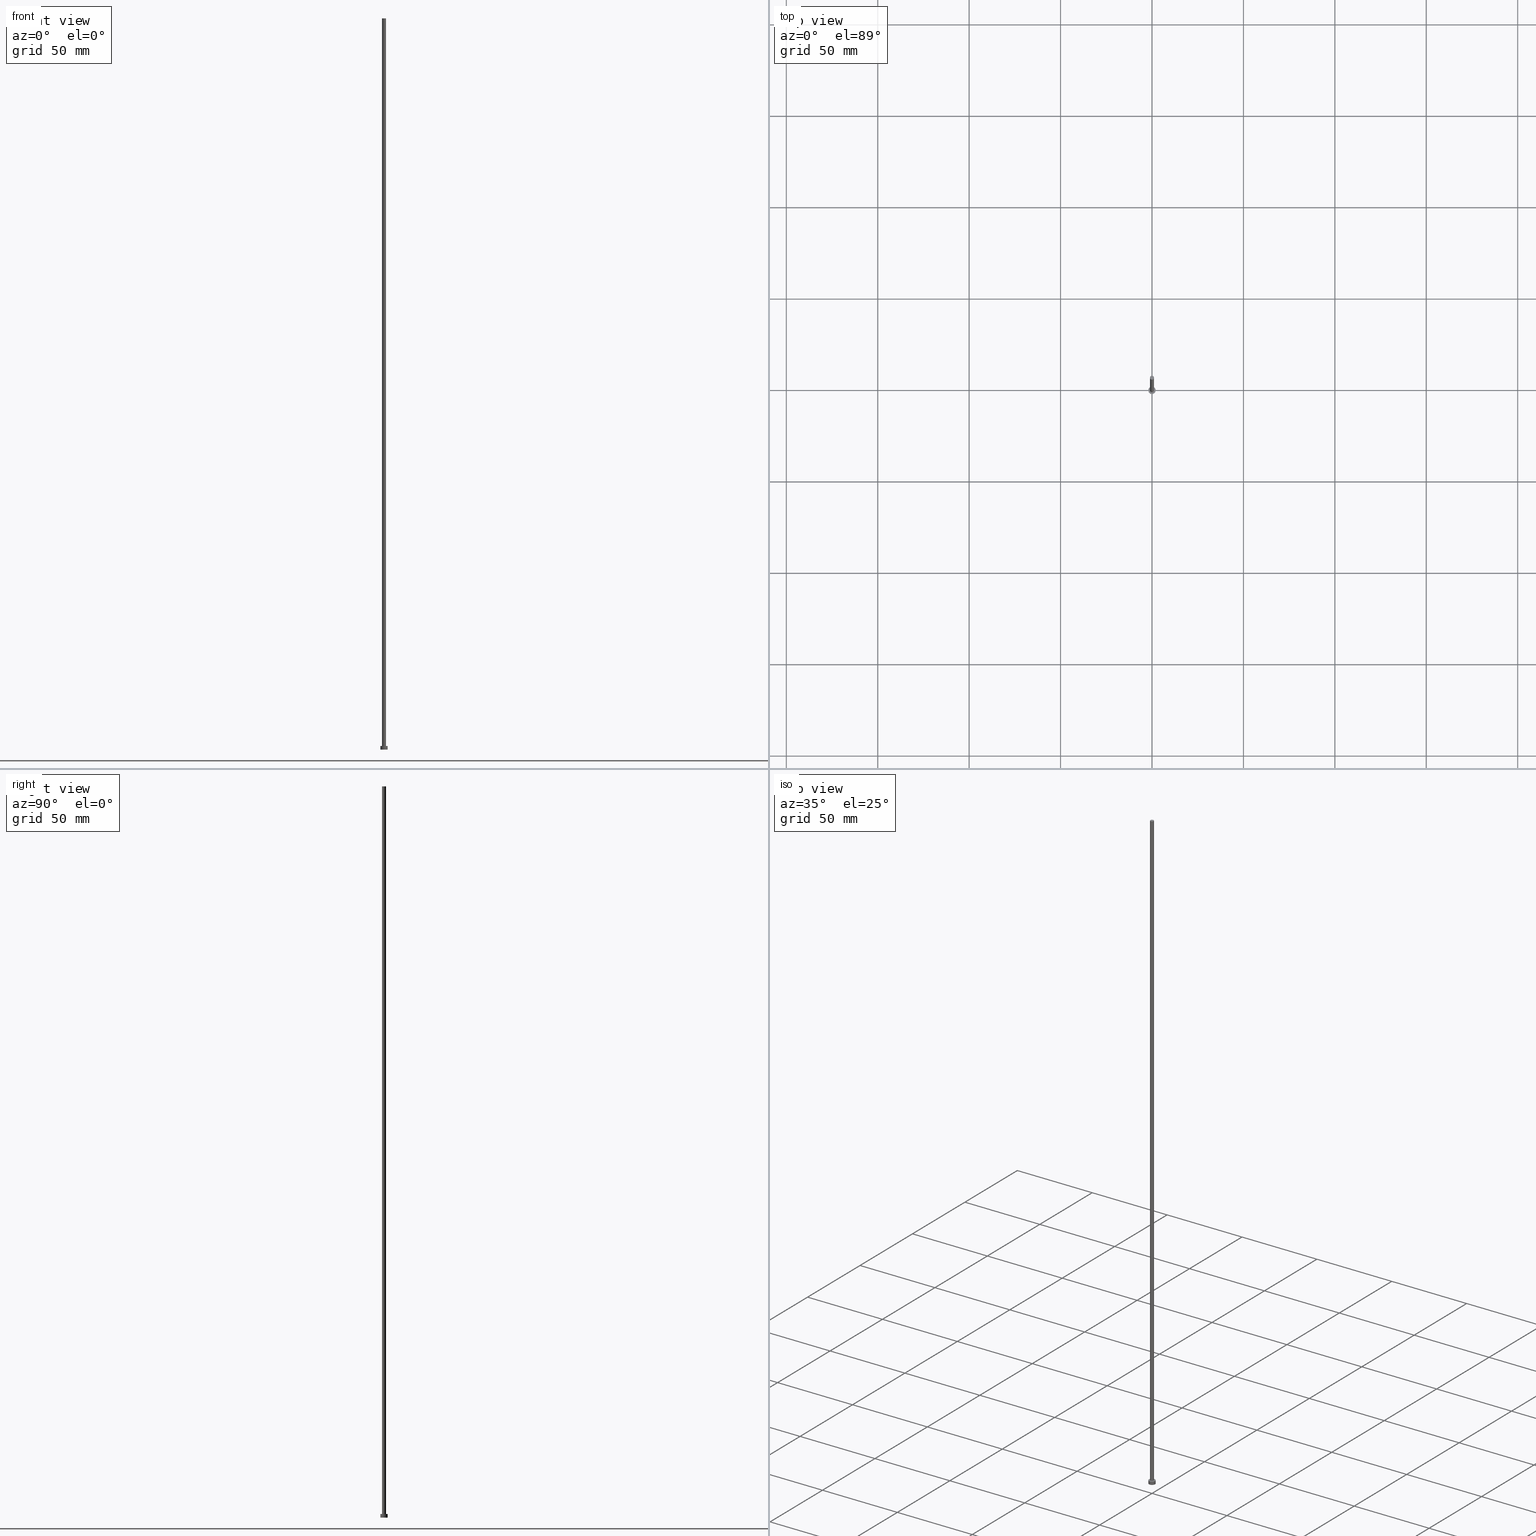
[diagram: canonical four-view strip — front | top / right | iso, engineering-drawing reading convention]
A machine part, canonical four-view strip (front | top / right | iso — engineering-drawing reading convention). The complete STEP part file that produces these views, byte-faithful:
ISO-10303-21;
HEADER;
FILE_DESCRIPTION (( 'STEP AP203' ),
    '1' );
FILE_NAME ('d074.STEP',
    '2023-02-12T12:49:59',
    ( '' ),
    ( '' ),
    'SwSTEP 2.0',
    'SolidWorks 2019',
    '' );
FILE_SCHEMA (( 'CONFIG_CONTROL_DESIGN' ));
ENDSEC;

DATA;
#1 = CARTESIAN_POINT ( 'NONE',  ( 0.000000000000000000, 0.000000000000000000, 400.0000000000000000 ) ) ;
#2 = CALENDAR_DATE ( 2023, 12, 2 ) ;
#3 = DIRECTION ( 'NONE',  ( 1.000000000000000000, 0.000000000000000000, 0.000000000000000000 ) ) ;
#4 = LINE ( 'NONE', #27, #39 ) ;
#5 = CARTESIAN_POINT ( 'NONE',  ( 0.000000000000000000, 0.000000000000000000, 2.000000000000000000 ) ) ;
#6 = LINE ( 'NONE', #241, #155 ) ;
#7 = CC_DESIGN_APPROVAL ( #135, ( #192 ) ) ;
#8 = CALENDAR_DATE ( 2023, 12, 2 ) ;
#9 = PERSON_AND_ORGANIZATION_ROLE ( 'design_owner' ) ;
#10 = EDGE_CURVE ( 'NONE', #152, #151, #161, .T. ) ;
#11 = CARTESIAN_POINT ( 'NONE',  ( 0.000000000000000000, 0.000000000000000000, 400.0000000000000000 ) ) ;
#12 = CIRCLE ( 'NONE', #165, 2.000000000000000000 ) ;
#13 = DIRECTION ( 'NONE',  ( -0.000000000000000000, -0.000000000000000000, -1.000000000000000000 ) ) ;
#14 = ORIENTED_EDGE ( 'NONE', *, *, #205, .F. ) ;
#15 = CC_DESIGN_DATE_AND_TIME_ASSIGNMENT ( #194, #56, ( #219 ) ) ;
#16 = CC_DESIGN_SECURITY_CLASSIFICATION ( #192, ( #31 ) ) ;
#17 = CIRCLE ( 'NONE', #21, 2.000000000000000000 ) ;
#18 = VERTEX_POINT ( 'NONE', #239 ) ;
#19 = VERTEX_POINT ( 'NONE', #75 ) ;
#20 = ORIENTED_EDGE ( 'NONE', *, *, #197, .T. ) ;
#21 = AXIS2_PLACEMENT_3D ( 'NONE', #61, #216, #40 ) ;
#22 = CIRCLE ( 'NONE', #198, 1.100000000000000089 ) ;
#23 = CARTESIAN_POINT ( 'NONE',  ( 0.000000000000000000, 0.000000000000000000, 2.000000000000000000 ) ) ;
#24 = CARTESIAN_POINT ( 'NONE',  ( 0.000000000000000000, 0.000000000000000000, 400.0000000000000000 ) ) ;
#25 = CARTESIAN_POINT ( 'NONE',  ( 0.000000000000000000, 0.000000000000000000, 0.000000000000000000 ) ) ;
#26 = LOCAL_TIME ( 13, 49, 59.00000000000000000, #113 ) ;
#27 = CARTESIAN_POINT ( 'NONE',  ( -1.100000000000000089, 0.000000000000000000, 400.0000000000000000 ) ) ;
#28 = ADVANCED_FACE ( 'NONE', ( #35 ), #96, .T. ) ;
#29 = CARTESIAN_POINT ( 'NONE',  ( 0.000000000000000000, 0.000000000000000000, 0.000000000000000000 ) ) ;
#30 = ADVANCED_FACE ( 'NONE', ( #34 ), #131, .F. ) ;
#31 = PRODUCT_DEFINITION_FORMATION_WITH_SPECIFIED_SOURCE ( 'LIBOVOLN�', '', #48, .NOT_KNOWN. ) ;
#32 = DATE_AND_TIME ( #204, #86 ) ;
#33 = EDGE_LOOP ( 'NONE', ( #137, #233 ) ) ;
#34 = FACE_OUTER_BOUND ( 'NONE', #252, .T. ) ;
#35 = FACE_OUTER_BOUND ( 'NONE', #153, .T. ) ;
#36 = PERSON_AND_ORGANIZATION ( #200, #74 ) ;
#37 = DIRECTION ( 'NONE',  ( 1.000000000000000000, 0.000000000000000000, 0.000000000000000000 ) ) ;
#38 = COORDINATED_UNIVERSAL_TIME_OFFSET ( 1, 0, .AHEAD. ) ;
#39 = VECTOR ( 'NONE', #157, 1000.000000000000000 ) ;
#40 = DIRECTION ( 'NONE',  ( 1.000000000000000000, 0.000000000000000000, 0.000000000000000000 ) ) ;
#41 = DIRECTION ( 'NONE',  ( -0.000000000000000000, -0.000000000000000000, -1.000000000000000000 ) ) ;
#42 = DIRECTION ( 'NONE',  ( 0.000000000000000000, 0.000000000000000000, 1.000000000000000000 ) ) ;
#43 = CIRCLE ( 'NONE', #92, 2.000000000000000000 ) ;
#44 = FACE_OUTER_BOUND ( 'NONE', #72, .T. ) ;
#45 = SHAPE_DEFINITION_REPRESENTATION ( #121, #143 ) ;
#46 = CC_DESIGN_PERSON_AND_ORGANIZATION_ASSIGNMENT ( #181, #9, ( #48 ) ) ;
#47 = MECHANICAL_CONTEXT ( 'NONE', #159, 'mechanical' ) ;
#48 = PRODUCT ( 'd074', 'd074', '', ( #47 ) ) ;
#49 = AXIS2_PLACEMENT_3D ( 'NONE', #122, #101, #160 ) ;
#50 = ORIENTED_EDGE ( 'NONE', *, *, #60, .F. ) ;
#51 = ORIENTED_EDGE ( 'NONE', *, *, #146, .F. ) ;
#52 = CIRCLE ( 'NONE', #210, 1.100000000000000089 ) ;
#53 = COORDINATED_UNIVERSAL_TIME_OFFSET ( 1, 0, .AHEAD. ) ;
#54 = EDGE_LOOP ( 'NONE', ( #238, #73 ) ) ;
#55 = ORIENTED_EDGE ( 'NONE', *, *, #142, .T. ) ;
#56 = DATE_TIME_ROLE ( 'creation_date' ) ;
#57 = CYLINDRICAL_SURFACE ( 'NONE', #254, 1.100000000000000089 ) ;
#58 = AXIS2_PLACEMENT_3D ( 'NONE', #154, #116, #174 ) ;
#59 = APPROVAL_DATE_TIME ( #138, #118 ) ;
#60 = EDGE_CURVE ( 'NONE', #19, #185, #12, .T. ) ;
#61 = CARTESIAN_POINT ( 'NONE',  ( 0.000000000000000000, 0.000000000000000000, 2.000000000000000000 ) ) ;
#62 = CARTESIAN_POINT ( 'NONE',  ( -1.100000000000000089, 0.000000000000000000, 2.000000000000000000 ) ) ;
#63 = LINE ( 'NONE', #156, #85 ) ;
#64 = CC_DESIGN_APPROVAL ( #118, ( #31 ) ) ;
#65 = DIRECTION ( 'NONE',  ( 1.000000000000000000, 0.000000000000000000, 0.000000000000000000 ) ) ;
#66 = ADVANCED_FACE ( 'NONE', ( #98 ), #119, .T. ) ;
#67 =( NAMED_UNIT ( * ) PLANE_ANGLE_UNIT ( ) SI_UNIT ( $, .RADIAN. ) );
#68 = CALENDAR_DATE ( 2023, 12, 2 ) ;
#69 = DATE_TIME_ROLE ( 'classification_date' ) ;
#70 = APPROVAL_PERSON_ORGANIZATION ( #182, #135, #99 ) ;
#71 = ORIENTED_EDGE ( 'NONE', *, *, #230, .T. ) ;
#72 = EDGE_LOOP ( 'NONE', ( #130, #136 ) ) ;
#73 = ORIENTED_EDGE ( 'NONE', *, *, #76, .T. ) ;
#74 = ORGANIZATION ( 'NEUR�EN�', 'NEUR�EN�', '' ) ;
#75 = CARTESIAN_POINT ( 'NONE',  ( -2.000000000000000000, 0.000000000000000000, 0.000000000000000000 ) ) ;
#76 = EDGE_CURVE ( 'NONE', #18, #134, #17, .T. ) ;
#77 = VERTEX_POINT ( 'NONE', #62 ) ;
#78 = CARTESIAN_POINT ( 'NONE',  ( 1.100000000000000089, 1.347111479062088503E-16, 2.000000000000000000 ) ) ;
#79 = PERSON_AND_ORGANIZATION_ROLE ( 'creator' ) ;
#80 = ADVANCED_FACE ( 'NONE', ( #82 ), #179, .T. ) ;
#81 = DIRECTION ( 'NONE',  ( 1.000000000000000000, 0.000000000000000000, -0.000000000000000000 ) ) ;
#82 = FACE_OUTER_BOUND ( 'NONE', #110, .T. ) ;
#83 = DIRECTION ( 'NONE',  ( -0.000000000000000000, -0.000000000000000000, -1.000000000000000000 ) ) ;
#84 = DIRECTION ( 'NONE',  ( 1.000000000000000000, 0.000000000000000000, 0.000000000000000000 ) ) ;
#85 = VECTOR ( 'NONE', #193, 1000.000000000000000 ) ;
#86 = LOCAL_TIME ( 13, 49, 59.00000000000000000, #38 ) ;
#87 = APPLICATION_PROTOCOL_DEFINITION ( 'international standard', 'config_control_design', 1994, #188 ) ;
#88 = CALENDAR_DATE ( 2023, 12, 2 ) ;
#89 = PERSON_AND_ORGANIZATION ( #200, #74 ) ;
#90 = ORIENTED_EDGE ( 'NONE', *, *, #205, .T. ) ;
#91 = AXIS2_PLACEMENT_3D ( 'NONE', #224, #125, #163 ) ;
#92 = AXIS2_PLACEMENT_3D ( 'NONE', #5, #242, #3 ) ;
#93 = ORIENTED_EDGE ( 'NONE', *, *, #189, .F. ) ;
#94 = ORIENTED_EDGE ( 'NONE', *, *, #146, .T. ) ;
#95 = APPROVAL_ROLE ( '' ) ;
#96 = CYLINDRICAL_SURFACE ( 'NONE', #132, 2.000000000000000000 ) ;
#97 = APPROVAL_DATE_TIME ( #202, #228 ) ;
#98 = FACE_OUTER_BOUND ( 'NONE', #149, .T. ) ;
#99 = APPROVAL_ROLE ( '' ) ;
#100 = PLANE ( 'NONE',  #104 ) ;
#101 = DIRECTION ( 'NONE',  ( 0.000000000000000000, 0.000000000000000000, 1.000000000000000000 ) ) ;
#102 = LINE ( 'NONE', #178, #231 ) ;
#103 = CARTESIAN_POINT ( 'NONE',  ( 0.000000000000000000, 0.000000000000000000, 2.000000000000000000 ) ) ;
#104 = AXIS2_PLACEMENT_3D ( 'NONE', #141, #42, #81 ) ;
#105 = UNCERTAINTY_MEASURE_WITH_UNIT (LENGTH_MEASURE( 1.000000000000000082E-05 ), #226, 'distance_accuracy_value', 'NONE');
#106 = AXIS2_PLACEMENT_3D ( 'NONE', #103, #175, #158 ) ;
#107 = PERSON_AND_ORGANIZATION_ROLE ( 'creator' ) ;
#108 = APPROVAL_STATUS ( 'not_yet_approved' ) ;
#109 = ORIENTED_EDGE ( 'NONE', *, *, #197, .F. ) ;
#110 = EDGE_LOOP ( 'NONE', ( #109, #255, #211, #111 ) ) ;
#111 = ORIENTED_EDGE ( 'NONE', *, *, #223, .T. ) ;
#112 = ORIENTED_EDGE ( 'NONE', *, *, #142, .F. ) ;
#113 = COORDINATED_UNIVERSAL_TIME_OFFSET ( 1, 0, .AHEAD. ) ;
#114 = AXIS2_PLACEMENT_3D ( 'NONE', #1, #41, #220 ) ;
#115 = EDGE_CURVE ( 'NONE', #134, #18, #43, .T. ) ;
#116 = DIRECTION ( 'NONE',  ( 0.000000000000000000, 0.000000000000000000, 1.000000000000000000 ) ) ;
#117 = PLANE ( 'NONE',  #49 ) ;
#118 = APPROVAL ( #108, 'NEUR�EN�' ) ;
#119 = CYLINDRICAL_SURFACE ( 'NONE', #106, 2.000000000000000000 ) ;
#120 = MANIFOLD_SOLID_BREP ( 'P�idat vysunut�m3', #123 ) ;
#121 = PRODUCT_DEFINITION_SHAPE ( 'NONE', 'NONE',  #219 ) ;
#122 = CARTESIAN_POINT ( 'NONE',  ( 0.000000000000000000, 0.000000000000000000, 2.000000000000000000 ) ) ;
#123 = CLOSED_SHELL ( 'NONE', ( #236, #66, #28, #168, #30, #80, #126 ) ) ;
#124 = CARTESIAN_POINT ( 'NONE',  ( 2.000000000000000000, 2.449293598294706414E-16, 0.000000000000000000 ) ) ;
#125 = DIRECTION ( 'NONE',  ( 0.000000000000000000, 0.000000000000000000, 1.000000000000000000 ) ) ;
#126 = ADVANCED_FACE ( 'NONE', ( #44 ), #100, .T. ) ;
#127 = CIRCLE ( 'NONE', #237, 2.000000000000000000 ) ;
#128 = CC_DESIGN_PERSON_AND_ORGANIZATION_ASSIGNMENT ( #173, #215, ( #31 ) ) ;
#129 = SECURITY_CLASSIFICATION_LEVEL ( 'unclassified' ) ;
#130 = ORIENTED_EDGE ( 'NONE', *, *, #172, .T. ) ;
#131 = PLANE ( 'NONE',  #191 ) ;
#132 = AXIS2_PLACEMENT_3D ( 'NONE', #234, #249, #148 ) ;
#133 =( GEOMETRIC_REPRESENTATION_CONTEXT ( 3 ) GLOBAL_UNCERTAINTY_ASSIGNED_CONTEXT ( ( #105 ) ) GLOBAL_UNIT_ASSIGNED_CONTEXT ( ( #226, #67, #229 ) ) REPRESENTATION_CONTEXT ( 'NONE', 'WORKASPACE' ) );
#134 = VERTEX_POINT ( 'NONE', #243 ) ;
#135 = APPROVAL ( #184, 'NEUR�EN�' ) ;
#136 = ORIENTED_EDGE ( 'NONE', *, *, #10, .T. ) ;
#137 = ORIENTED_EDGE ( 'NONE', *, *, #223, .F. ) ;
#138 = DATE_AND_TIME ( #2, #180 ) ;
#139 = DIRECTION ( 'NONE',  ( 1.000000000000000000, 0.000000000000000000, -0.000000000000000000 ) ) ;
#140 = CARTESIAN_POINT ( 'NONE',  ( -1.100000000000000089, 0.000000000000000000, 400.0000000000000000 ) ) ;
#141 = CARTESIAN_POINT ( 'NONE',  ( 0.000000000000000000, 0.000000000000000000, 400.0000000000000000 ) ) ;
#142 = EDGE_CURVE ( 'NONE', #18, #185, #63, .T. ) ;
#143 = ADVANCED_BREP_SHAPE_REPRESENTATION ( 'd074', ( #120, #91 ), #133 ) ;
#144 = DIRECTION ( 'NONE',  ( 0.000000000000000000, 0.000000000000000000, 1.000000000000000000 ) ) ;
#145 = CC_DESIGN_APPROVAL ( #228, ( #219 ) ) ;
#146 = EDGE_CURVE ( 'NONE', #134, #19, #6, .T. ) ;
#147 = APPROVAL_DATE_TIME ( #247, #135 ) ;
#148 = DIRECTION ( 'NONE',  ( -1.000000000000000000, 0.000000000000000000, 0.000000000000000000 ) ) ;
#149 = EDGE_LOOP ( 'NONE', ( #187, #55, #90, #51 ) ) ;
#150 = APPROVAL_STATUS ( 'not_yet_approved' ) ;
#151 = VERTEX_POINT ( 'NONE', #140 ) ;
#152 = VERTEX_POINT ( 'NONE', #218 ) ;
#153 = EDGE_LOOP ( 'NONE', ( #112, #213, #94, #251 ) ) ;
#154 = CARTESIAN_POINT ( 'NONE',  ( 0.000000000000000000, 0.000000000000000000, 2.000000000000000000 ) ) ;
#155 = VECTOR ( 'NONE', #83, 1000.000000000000000 ) ;
#156 = CARTESIAN_POINT ( 'NONE',  ( 2.000000000000000000, 2.449293598294706414E-16, 2.000000000000000000 ) ) ;
#157 = DIRECTION ( 'NONE',  ( -0.000000000000000000, -0.000000000000000000, -1.000000000000000000 ) ) ;
#158 = DIRECTION ( 'NONE',  ( -1.000000000000000000, 0.000000000000000000, 0.000000000000000000 ) ) ;
#159 = APPLICATION_CONTEXT ( 'configuration controlled 3d designs of mechanical parts and assemblies' ) ;
#160 = DIRECTION ( 'NONE',  ( 1.000000000000000000, 0.000000000000000000, -0.000000000000000000 ) ) ;
#161 = CIRCLE ( 'NONE', #209, 1.100000000000000089 ) ;
#162 = LOCAL_TIME ( 13, 49, 59.00000000000000000, #53 ) ;
#163 = DIRECTION ( 'NONE',  ( 1.000000000000000000, 0.000000000000000000, 0.000000000000000000 ) ) ;
#164 = PERSON_AND_ORGANIZATION ( #200, #74 ) ;
#165 = AXIS2_PLACEMENT_3D ( 'NONE', #25, #195, #84 ) ;
#166 = PERSON_AND_ORGANIZATION ( #200, #74 ) ;
#167 = EDGE_LOOP ( 'NONE', ( #171, #20, #71, #93 ) ) ;
#168 = ADVANCED_FACE ( 'NONE', ( #196, #222 ), #117, .T. ) ;
#169 = CARTESIAN_POINT ( 'NONE',  ( 0.000000000000000000, 0.000000000000000000, 400.0000000000000000 ) ) ;
#170 = APPROVAL_PERSON_ORGANIZATION ( #166, #118, #250 ) ;
#171 = ORIENTED_EDGE ( 'NONE', *, *, #10, .F. ) ;
#172 = EDGE_CURVE ( 'NONE', #151, #152, #52, .T. ) ;
#173 = PERSON_AND_ORGANIZATION ( #200, #74 ) ;
#174 = DIRECTION ( 'NONE',  ( 1.000000000000000000, 0.000000000000000000, 0.000000000000000000 ) ) ;
#175 = DIRECTION ( 'NONE',  ( -0.000000000000000000, -0.000000000000000000, -1.000000000000000000 ) ) ;
#176 = DIRECTION ( 'NONE',  ( 1.000000000000000000, 0.000000000000000000, 0.000000000000000000 ) ) ;
#177 = CC_DESIGN_PERSON_AND_ORGANIZATION_ASSIGNMENT ( #36, #79, ( #219 ) ) ;
#178 = CARTESIAN_POINT ( 'NONE',  ( 1.100000000000000089, 1.347111479062088503E-16, 400.0000000000000000 ) ) ;
#179 = CYLINDRICAL_SURFACE ( 'NONE', #114, 1.100000000000000089 ) ;
#180 = LOCAL_TIME ( 13, 49, 59.00000000000000000, #190 ) ;
#181 = PERSON_AND_ORGANIZATION ( #200, #74 ) ;
#182 = PERSON_AND_ORGANIZATION ( #200, #74 ) ;
#183 = CC_DESIGN_PERSON_AND_ORGANIZATION_ASSIGNMENT ( #232, #107, ( #31 ) ) ;
#184 = APPROVAL_STATUS ( 'not_yet_approved' ) ;
#185 = VERTEX_POINT ( 'NONE', #124 ) ;
#186 = CC_DESIGN_DATE_AND_TIME_ASSIGNMENT ( #32, #69, ( #192 ) ) ;
#187 = ORIENTED_EDGE ( 'NONE', *, *, #76, .F. ) ;
#188 = APPLICATION_CONTEXT ( 'configuration controlled 3d designs of mechanical parts and assemblies' ) ;
#189 = EDGE_CURVE ( 'NONE', #151, #77, #4, .T. ) ;
#190 = COORDINATED_UNIVERSAL_TIME_OFFSET ( 1, 0, .AHEAD. ) ;
#191 = AXIS2_PLACEMENT_3D ( 'NONE', #208, #144, #139 ) ;
#192 = SECURITY_CLASSIFICATION ( '', '', #129 ) ;
#193 = DIRECTION ( 'NONE',  ( -0.000000000000000000, -0.000000000000000000, -1.000000000000000000 ) ) ;
#194 = DATE_AND_TIME ( #68, #26 ) ;
#195 = DIRECTION ( 'NONE',  ( 0.000000000000000000, 0.000000000000000000, 1.000000000000000000 ) ) ;
#196 = FACE_BOUND ( 'NONE', #33, .T. ) ;
#197 = EDGE_CURVE ( 'NONE', #152, #235, #102, .T. ) ;
#198 = AXIS2_PLACEMENT_3D ( 'NONE', #23, #214, #37 ) ;
#199 = DIRECTION ( 'NONE',  ( 0.000000000000000000, 0.000000000000000000, 1.000000000000000000 ) ) ;
#200 = PERSON ( 'NEUR�EN�', 'NEUR�EN�', 'NEUR�EN�', ('NEUR�EN�'), ('NEUR�EN�'), ('NEUR�EN�') ) ;
#201 = DIRECTION ( 'NONE',  ( -0.000000000000000000, -0.000000000000000000, -1.000000000000000000 ) ) ;
#202 = DATE_AND_TIME ( #8, #162 ) ;
#203 = LOCAL_TIME ( 13, 49, 59.00000000000000000, #248 ) ;
#204 = CALENDAR_DATE ( 2023, 12, 2 ) ;
#205 = EDGE_CURVE ( 'NONE', #185, #19, #127, .T. ) ;
#206 = PRODUCT_RELATED_PRODUCT_CATEGORY ( 'detail', '', ( #48 ) ) ;
#207 = DIRECTION ( 'NONE',  ( 0.000000000000000000, 0.000000000000000000, 1.000000000000000000 ) ) ;
#208 = CARTESIAN_POINT ( 'NONE',  ( 0.000000000000000000, 0.000000000000000000, 0.000000000000000000 ) ) ;
#209 = AXIS2_PLACEMENT_3D ( 'NONE', #169, #207, #253 ) ;
#210 = AXIS2_PLACEMENT_3D ( 'NONE', #24, #199, #176 ) ;
#211 = ORIENTED_EDGE ( 'NONE', *, *, #189, .T. ) ;
#212 = DESIGN_CONTEXT ( 'detailed design', #188, 'design' ) ;
#213 = ORIENTED_EDGE ( 'NONE', *, *, #115, .F. ) ;
#214 = DIRECTION ( 'NONE',  ( 0.000000000000000000, 0.000000000000000000, 1.000000000000000000 ) ) ;
#215 = PERSON_AND_ORGANIZATION_ROLE ( 'design_supplier' ) ;
#216 = DIRECTION ( 'NONE',  ( 0.000000000000000000, 0.000000000000000000, 1.000000000000000000 ) ) ;
#217 = PERSON_AND_ORGANIZATION_ROLE ( 'classification_officer' ) ;
#218 = CARTESIAN_POINT ( 'NONE',  ( 1.100000000000000089, 1.347111479062088503E-16, 400.0000000000000000 ) ) ;
#219 = PRODUCT_DEFINITION ( 'NEZN�M�', '', #31, #212 ) ;
#220 = DIRECTION ( 'NONE',  ( -1.000000000000000000, 0.000000000000000000, 0.000000000000000000 ) ) ;
#221 = APPROVAL_PERSON_ORGANIZATION ( #164, #228, #95 ) ;
#222 = FACE_OUTER_BOUND ( 'NONE', #54, .T. ) ;
#223 = EDGE_CURVE ( 'NONE', #77, #235, #22, .T. ) ;
#224 = CARTESIAN_POINT ( 'NONE',  ( 0.000000000000000000, 0.000000000000000000, 0.000000000000000000 ) ) ;
#225 = CC_DESIGN_PERSON_AND_ORGANIZATION_ASSIGNMENT ( #89, #217, ( #192 ) ) ;
#226 =( LENGTH_UNIT ( ) NAMED_UNIT ( * ) SI_UNIT ( .MILLI., .METRE. ) );
#227 = CIRCLE ( 'NONE', #58, 1.100000000000000089 ) ;
#228 = APPROVAL ( #150, 'NEUR�EN�' ) ;
#229 =( NAMED_UNIT ( * ) SI_UNIT ( $, .STERADIAN. ) SOLID_ANGLE_UNIT ( ) );
#230 = EDGE_CURVE ( 'NONE', #235, #77, #227, .T. ) ;
#231 = VECTOR ( 'NONE', #201, 1000.000000000000000 ) ;
#232 = PERSON_AND_ORGANIZATION ( #200, #74 ) ;
#233 = ORIENTED_EDGE ( 'NONE', *, *, #230, .F. ) ;
#234 = CARTESIAN_POINT ( 'NONE',  ( 0.000000000000000000, 0.000000000000000000, 2.000000000000000000 ) ) ;
#235 = VERTEX_POINT ( 'NONE', #78 ) ;
#236 = ADVANCED_FACE ( 'NONE', ( #240 ), #57, .T. ) ;
#237 = AXIS2_PLACEMENT_3D ( 'NONE', #29, #244, #65 ) ;
#238 = ORIENTED_EDGE ( 'NONE', *, *, #115, .T. ) ;
#239 = CARTESIAN_POINT ( 'NONE',  ( 2.000000000000000000, 2.449293598294706414E-16, 2.000000000000000000 ) ) ;
#240 = FACE_OUTER_BOUND ( 'NONE', #167, .T. ) ;
#241 = CARTESIAN_POINT ( 'NONE',  ( -2.000000000000000000, 0.000000000000000000, 2.000000000000000000 ) ) ;
#242 = DIRECTION ( 'NONE',  ( 0.000000000000000000, 0.000000000000000000, 1.000000000000000000 ) ) ;
#243 = CARTESIAN_POINT ( 'NONE',  ( -2.000000000000000000, 0.000000000000000000, 2.000000000000000000 ) ) ;
#244 = DIRECTION ( 'NONE',  ( 0.000000000000000000, 0.000000000000000000, 1.000000000000000000 ) ) ;
#245 = APPLICATION_PROTOCOL_DEFINITION ( 'international standard', 'config_control_design', 1994, #159 ) ;
#246 = DIRECTION ( 'NONE',  ( -1.000000000000000000, 0.000000000000000000, 0.000000000000000000 ) ) ;
#247 = DATE_AND_TIME ( #88, #203 ) ;
#248 = COORDINATED_UNIVERSAL_TIME_OFFSET ( 1, 0, .AHEAD. ) ;
#249 = DIRECTION ( 'NONE',  ( -0.000000000000000000, -0.000000000000000000, -1.000000000000000000 ) ) ;
#250 = APPROVAL_ROLE ( '' ) ;
#251 = ORIENTED_EDGE ( 'NONE', *, *, #60, .T. ) ;
#252 = EDGE_LOOP ( 'NONE', ( #50, #14 ) ) ;
#253 = DIRECTION ( 'NONE',  ( 1.000000000000000000, 0.000000000000000000, 0.000000000000000000 ) ) ;
#254 = AXIS2_PLACEMENT_3D ( 'NONE', #11, #13, #246 ) ;
#255 = ORIENTED_EDGE ( 'NONE', *, *, #172, .F. ) ;
ENDSEC;
END-ISO-10303-21;
